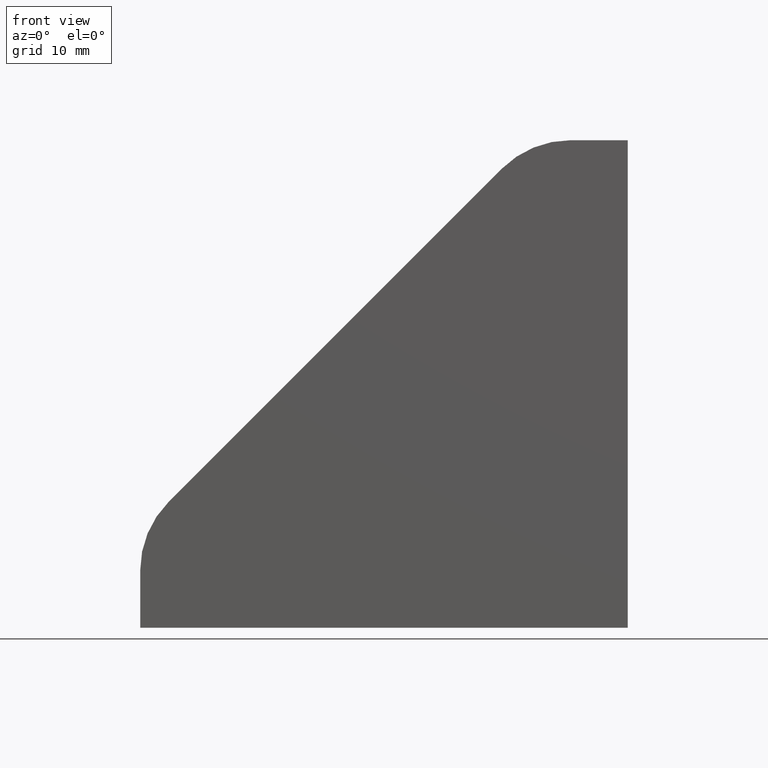
[diagram: clean part render]
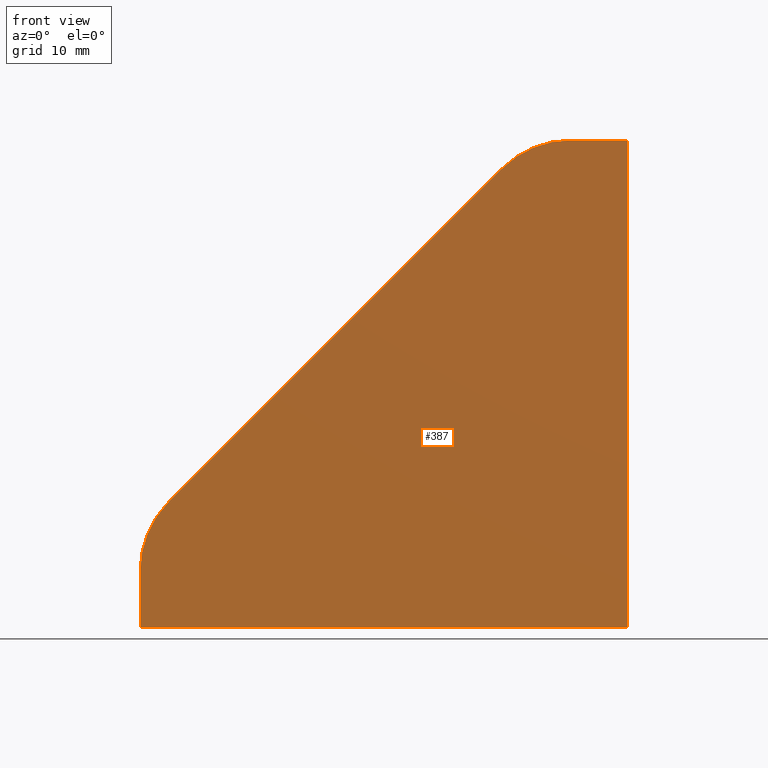
[diagram: same view with one face highlighted and labeled with its STEP entity id]
A machine part, front view. The second image highlights one B-rep face of the part: STEP entity #387.
In plain terms, the highlighted planar face has unit normal (0, 1, 0).
Its self-contained STEP definition (entity closure, byte-faithful):
#296=CARTESIAN_POINT('',(-40.000000000000014,-10.0,4.686291501015233));
#297=VERTEX_POINT('',#296);
#298=CARTESIAN_POINT('',(-40.000000000000014,-10.0,0.0));
#299=VERTEX_POINT('',#298);
#300=CARTESIAN_POINT('',(-40.000000000000014,-10.0,4.686291501015241));
#301=DIRECTION('',(0.0,0.0,-1.0));
#302=VECTOR('',#301,4.686291501015241);
#303=LINE('',#300,#302);
#304=EDGE_CURVE('',#297,#299,#303,.T.);
#331=CARTESIAN_POINT('',(-42.000000000000014,-10.0,-2.0));
#332=DIRECTION('',(0.0,1.0,0.0));
#333=DIRECTION('',(0.0,0.0,1.0));
#334=AXIS2_PLACEMENT_3D('',#331,#332,#333);
#335=PLANE('',#334);
#336=CARTESIAN_POINT('',(-4.686291501015241,-10.0,40.0));
#337=VERTEX_POINT('',#336);
#338=CARTESIAN_POINT('',(0.0,-10.0,40.0));
#339=VERTEX_POINT('',#338);
#340=CARTESIAN_POINT('',(-4.686291501015244,-10.0,40.0));
#341=DIRECTION('',(1.0,0.0,0.0));
#342=VECTOR('',#341,4.686291501015244);
#343=LINE('',#340,#342);
#344=EDGE_CURVE('',#337,#339,#343,.T.);
#345=ORIENTED_EDGE('',*,*,#344,.F.);
#346=CARTESIAN_POINT('',(-10.343145750507620,-10.0,37.656854249492390));
#347=VERTEX_POINT('',#346);
#348=CARTESIAN_POINT('',(-4.686291501015241,-10.0,32.0));
#349=DIRECTION('',(0.0,-1.0,0.0));
#350=DIRECTION('',(0.0,0.0,1.0));
#351=AXIS2_PLACEMENT_3D('',#348,#349,#350);
#352=CIRCLE('',#351,8.0);
#353=EDGE_CURVE('',#337,#347,#352,.T.);
#354=ORIENTED_EDGE('',*,*,#353,.T.);
#355=CARTESIAN_POINT('',(-37.656854249492369,-10.0,10.343145750507613));
#356=VERTEX_POINT('',#355);
#357=CARTESIAN_POINT('',(-37.656854249492383,-10.0,10.343145750507619));
#358=DIRECTION('',(0.707106781186547,0.0,0.707106781186548));
#359=VECTOR('',#358,38.627416997969533);
#360=LINE('',#357,#359);
#361=EDGE_CURVE('',#356,#347,#360,.T.);
#362=ORIENTED_EDGE('',*,*,#361,.F.);
#363=CARTESIAN_POINT('',(-32.0,-10.0,4.686291501015233));
#364=DIRECTION('',(0.0,-1.0,0.0));
#365=DIRECTION('',(0.0,0.0,1.0));
#366=AXIS2_PLACEMENT_3D('',#363,#364,#365);
#367=CIRCLE('',#366,8.0);
#368=EDGE_CURVE('',#356,#297,#367,.T.);
#369=ORIENTED_EDGE('',*,*,#368,.T.);
#370=ORIENTED_EDGE('',*,*,#304,.T.);
#371=CARTESIAN_POINT('',(0.0,-10.0,0.0));
#372=VERTEX_POINT('',#371);
#373=CARTESIAN_POINT('',(-40.000000000000014,-10.0,0.0));
#374=DIRECTION('',(1.0,0.0,0.0));
#375=VECTOR('',#374,40.000000000000014);
#376=LINE('',#373,#375);
#377=EDGE_CURVE('',#299,#372,#376,.T.);
#378=ORIENTED_EDGE('',*,*,#377,.T.);
#379=CARTESIAN_POINT('',(0.0,-10.0,40.0));
#380=DIRECTION('',(0.0,0.0,-1.0));
#381=VECTOR('',#380,40.0);
#382=LINE('',#379,#381);
#383=EDGE_CURVE('',#339,#372,#382,.T.);
#384=ORIENTED_EDGE('',*,*,#383,.F.);
#385=EDGE_LOOP('',(#345,#354,#362,#369,#370,#378,#384));
#386=FACE_OUTER_BOUND('',#385,.T.);
#387=ADVANCED_FACE('',(#386),#335,.F.);